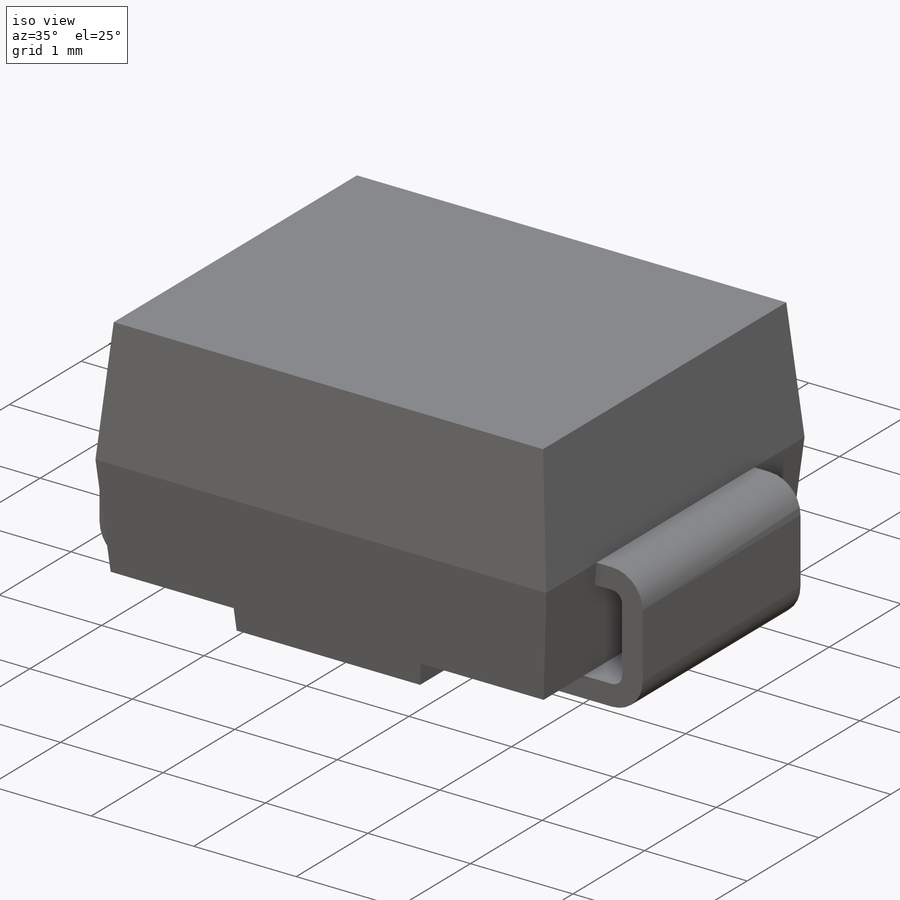
[diagram: iso view]
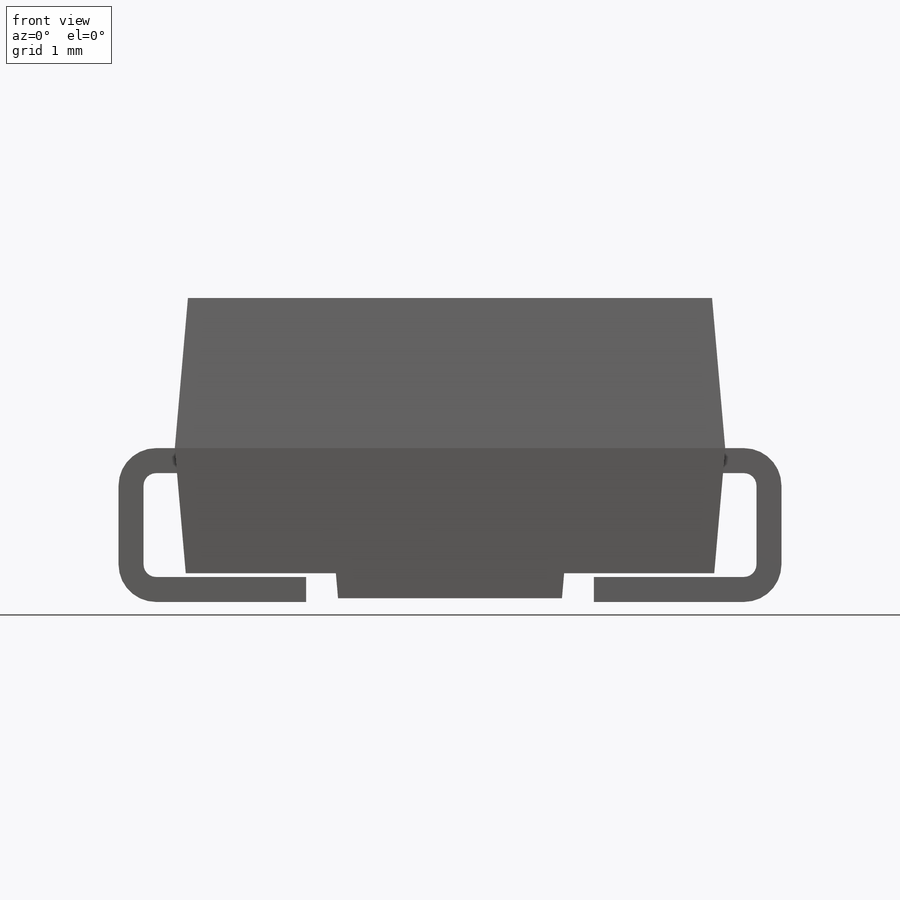
[diagram: front view]
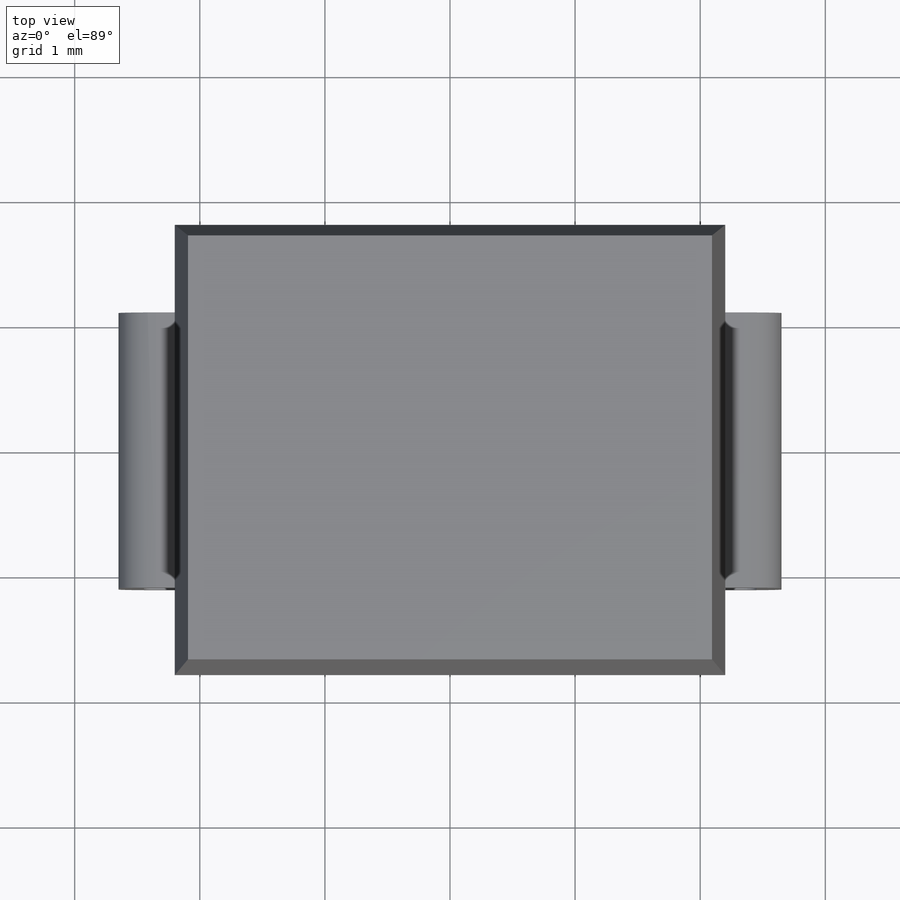
[diagram: top view]
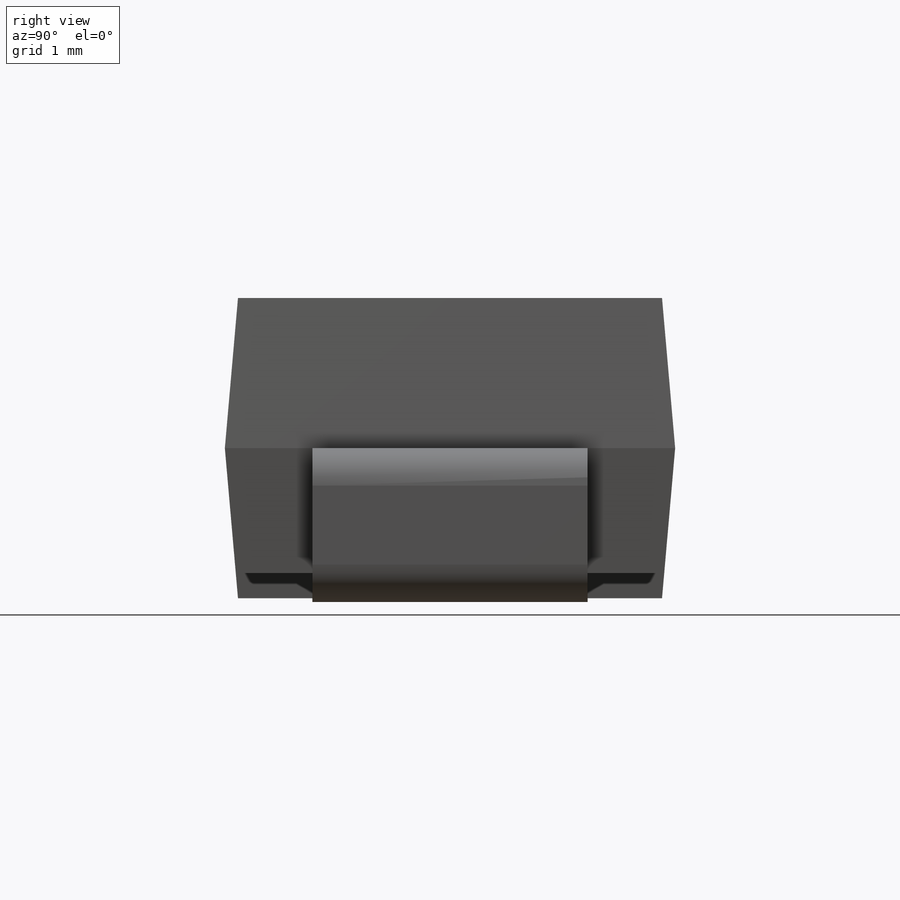
[diagram: right view]
SOLIDWORKS PART (.sldprt)
format: sldprt  version: not decoded by parser v0  size: 220,672 bytes
history: native  units: mm
features: sketch x4, extrude x3, fillet x2, material x1, plane x1 (+12 scaffold rows collapsed)
feature tree (23):
  scaffold x12  (default folders/planes/origin — collapsed)
  material  "Material <not specified>"
  sketch  "Sketch1"  dims[D1=4.4mm D2=3.6mm D3=1.2mm D4=1.2mm]
  extrude  "Extrude1"  Depth=1.2mm
  extrude  "Extrude2"  [1 undecoded]
  sketch  "Sketch1<3>"  dims[D1=1.2mm D3=5.0deg]
  sketch  "Sketch2"  dims[c1.D1=~0.246212mm c2.D1=90.0deg c3.D1=0.2mm c3.D2=0.2mm c3.D3=0.2mm c3.D4=5.3mm c3.D5=1.5mm c3.D6=0.03mm]
  extrude  "Extrude3"  Depth=1.1mm
  fillet  "Fillet1"  Radius=0.1mm
  fillet  "Fillet2"  Radius=0.3mm
  plane  "Board Plane"  Offset=1.23mm
  sketch  "Component_Outline"
decode coverage: 7 of 9 modeling features carry decoded parameters
note: ~ marks probable driven/reference dimensions
note: 1 parameter value undecoded
note: suppression state not decoded; provenance and decode notes live in map.json
